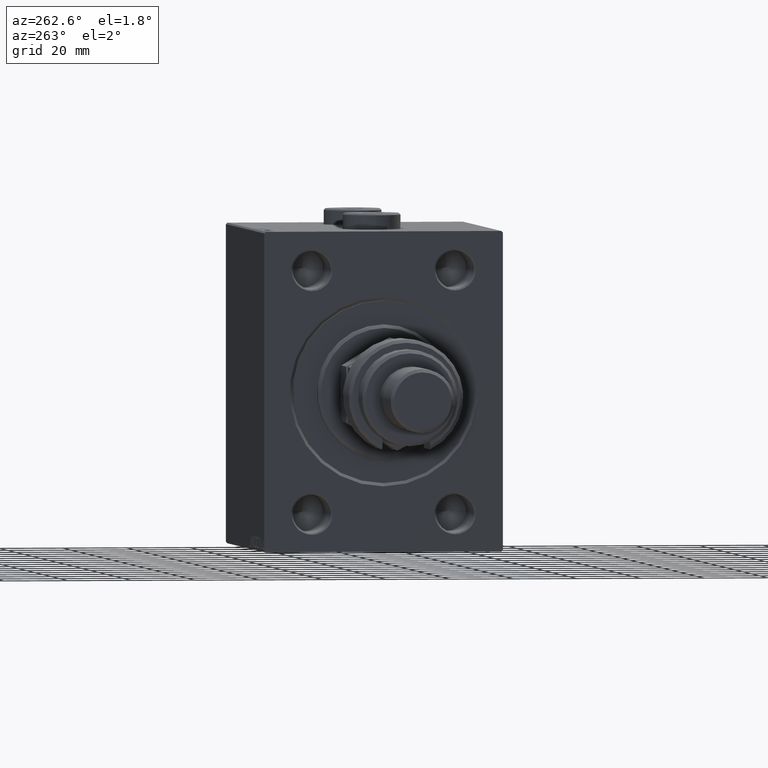
[diagram: clean part render]
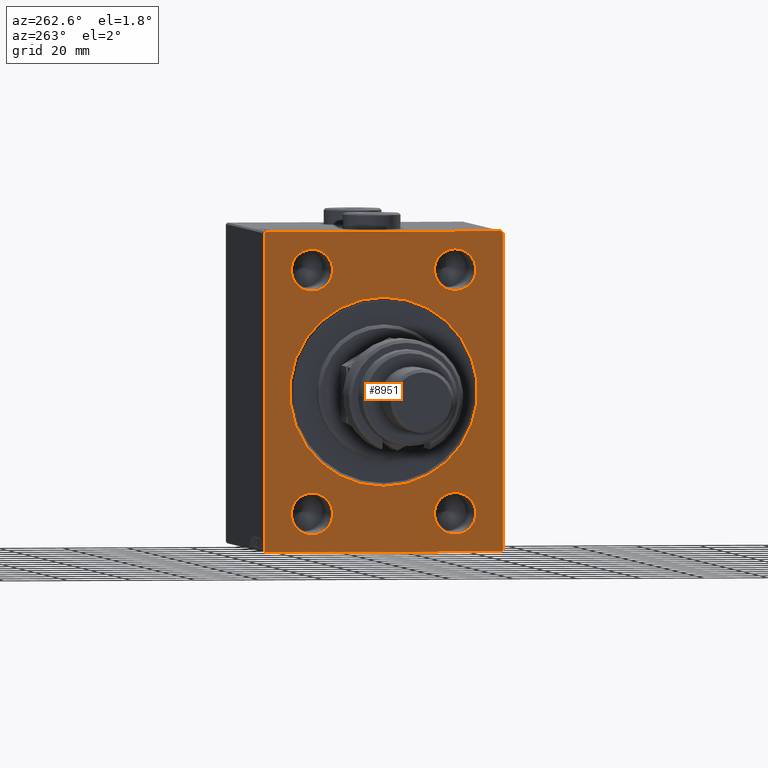
[diagram: same view with one face highlighted and labeled with its STEP entity id]
A machine part, auxiliary view. The second image highlights one B-rep face of the part: STEP entity #8951.
In plain terms, the highlighted planar face has unit normal (1, 0, 0).
Its self-contained STEP definition (entity closure, byte-faithful):
#889 = EDGE_CURVE ( 'NONE', #2323, #44089, #39453, .T. ) ;
#1381 = CARTESIAN_POINT ( 'NONE',  ( 0.000000000000000000, 22.50000000000000000, -31.50000000000000000 ) ) ;
#1384 = AXIS2_PLACEMENT_3D ( 'NONE', #27483, #35309, #5250 ) ;
#1595 = EDGE_CURVE ( 'NONE', #28750, #16881, #8248, .T. ) ;
#1763 = CIRCLE ( 'NONE', #11140, 6.500000000000005329 ) ;
#2145 = CARTESIAN_POINT ( 'NONE',  ( 0.000000000000000000, -22.50000000000000000, 44.50000000000000000 ) ) ;
#2322 = VECTOR ( 'NONE', #32963, 1000.000000000000000 ) ;
#2323 = VERTEX_POINT ( 'NONE', #1381 ) ;
#2439 = EDGE_CURVE ( 'NONE', #7145, #4033, #18463, .T. ) ;
#2837 = CARTESIAN_POINT ( 'NONE',  ( 0.000000000000000000, 37.49999999999999289, 50.00000000000000711 ) ) ;
#3036 = AXIS2_PLACEMENT_3D ( 'NONE', #8599, #4700, #14980 ) ;
#3174 = CIRCLE ( 'NONE', #11728, 6.500000000000005329 ) ;
#3199 = ORIENTED_EDGE ( 'NONE', *, *, #33177, .T. ) ;
#4003 = CARTESIAN_POINT ( 'NONE',  ( 0.000000000000000000, 0.000000000000000000, 29.50000000000002842 ) ) ;
#4033 = VERTEX_POINT ( 'NONE', #27545 ) ;
#4040 = CARTESIAN_POINT ( 'NONE',  ( 0.000000000000000000, -37.50000000000000000, 49.49999999999995026 ) ) ;
#4364 = DIRECTION ( 'NONE',  ( 1.000000000000000000, 0.000000000000000000, 0.000000000000000000 ) ) ;
#4427 = DIRECTION ( 'NONE',  ( 0.000000000000000000, -1.387778780781445676E-16, 1.000000000000000000 ) ) ;
#4700 = DIRECTION ( 'NONE',  ( 1.000000000000000000, 0.000000000000000000, 0.000000000000000000 ) ) ;
#4866 = CARTESIAN_POINT ( 'NONE',  ( 0.000000000000000000, -37.50000000000000000, 49.99999999999998579 ) ) ;
#5003 = ORIENTED_EDGE ( 'NONE', *, *, #48210, .T. ) ;
#5022 = ORIENTED_EDGE ( 'NONE', *, *, #28708, .T. ) ;
#5112 = DIRECTION ( 'NONE',  ( 0.000000000000000000, 0.000000000000000000, -1.000000000000000000 ) ) ;
#5165 = ORIENTED_EDGE ( 'NONE', *, *, #15116, .F. ) ;
#5250 = DIRECTION ( 'NONE',  ( 0.000000000000000000, 0.000000000000000000, -1.000000000000000000 ) ) ;
#5302 = VECTOR ( 'NONE', #37951, 1000.000000000000000 ) ;
#5338 = CARTESIAN_POINT ( 'NONE',  ( 0.000000000000000000, 22.50000000000000000, 37.99999999999999289 ) ) ;
#5552 = VERTEX_POINT ( 'NONE', #25397 ) ;
#5659 = DIRECTION ( 'NONE',  ( 1.000000000000000000, 0.000000000000000000, 0.000000000000000000 ) ) ;
#6553 = CARTESIAN_POINT ( 'NONE',  ( 0.000000000000000000, -22.50000000000000000, -44.50000000000001421 ) ) ;
#7040 = VECTOR ( 'NONE', #5112, 1000.000000000000000 ) ;
#7145 = VERTEX_POINT ( 'NONE', #19507 ) ;
#7421 = LINE ( 'NONE', #18909, #5302 ) ;
#7593 = CIRCLE ( 'NONE', #41960, 6.500000000000005329 ) ;
#8054 = EDGE_LOOP ( 'NONE', ( #10766, #8532 ) ) ;
#8248 = CIRCLE ( 'NONE', #21559, 29.50000000000002842 ) ;
#8330 = ORIENTED_EDGE ( 'NONE', *, *, #2439, .F. ) ;
#8489 = CIRCLE ( 'NONE', #48312, 6.500000000000005329 ) ;
#8532 = ORIENTED_EDGE ( 'NONE', *, *, #9671, .T. ) ;
#8599 = CARTESIAN_POINT ( 'NONE',  ( 0.000000000000000000, -22.50000000000000000, -38.00000000000000711 ) ) ;
#8951 = ADVANCED_FACE ( 'NONE', ( #32544, #24480, #10048, #20805, #47217, #35974 ), #16900, .F. ) ;
#9011 = LINE ( 'NONE', #31976, #2322 ) ;
#9056 = VECTOR ( 'NONE', #24834, 1000.000000000000000 ) ;
#9290 = ORIENTED_EDGE ( 'NONE', *, *, #11363, .T. ) ;
#9671 = EDGE_CURVE ( 'NONE', #44089, #2323, #27926, .T. ) ;
#10048 = FACE_BOUND ( 'NONE', #18794, .T. ) ;
#10300 = DIRECTION ( 'NONE',  ( 1.000000000000000000, 0.000000000000000000, 0.000000000000000000 ) ) ;
#10468 = DIRECTION ( 'NONE',  ( 0.000000000000000000, 0.000000000000000000, -1.000000000000000000 ) ) ;
#10588 = ORIENTED_EDGE ( 'NONE', *, *, #13187, .T. ) ;
#10766 = ORIENTED_EDGE ( 'NONE', *, *, #889, .T. ) ;
#10865 = VECTOR ( 'NONE', #12166, 1000.000000000000000 ) ;
#10954 = CARTESIAN_POINT ( 'NONE',  ( 0.000000000000000000, -37.50000000000000000, -49.49999999999997158 ) ) ;
#11140 = AXIS2_PLACEMENT_3D ( 'NONE', #31558, #5659, #20069 ) ;
#11363 = EDGE_CURVE ( 'NONE', #22186, #33260, #25672, .T. ) ;
#11728 = AXIS2_PLACEMENT_3D ( 'NONE', #18047, #21229, #10468 ) ;
#12166 = DIRECTION ( 'NONE',  ( 0.000000000000000000, -0.7071067811865622277, -0.7071067811865328068 ) ) ;
#12397 = DIRECTION ( 'NONE',  ( -0.000000000000000000, 0.7071067811865426878, -0.7071067811865524577 ) ) ;
#12549 = DIRECTION ( 'NONE',  ( 0.000000000000000000, 0.000000000000000000, -1.000000000000000000 ) ) ;
#13187 = EDGE_CURVE ( 'NONE', #34849, #39929, #8489, .T. ) ;
#13751 = CARTESIAN_POINT ( 'NONE',  ( 0.000000000000000000, 22.50000000000000000, -44.50000000000001421 ) ) ;
#14162 = CARTESIAN_POINT ( 'NONE',  ( 0.000000000000000000, -22.50000000000000000, -38.00000000000000711 ) ) ;
#14980 = DIRECTION ( 'NONE',  ( 0.000000000000000000, 0.000000000000000000, -1.000000000000000000 ) ) ;
#15035 = EDGE_CURVE ( 'NONE', #38932, #41784, #38345, .T. ) ;
#15116 = EDGE_CURVE ( 'NONE', #41007, #40699, #9011, .T. ) ;
#16346 = DIRECTION ( 'NONE',  ( 0.000000000000000000, 0.000000000000000000, -1.000000000000000000 ) ) ;
#16359 = EDGE_LOOP ( 'NONE', ( #36305, #9290 ) ) ;
#16881 = VERTEX_POINT ( 'NONE', #48118 ) ;
#16900 = PLANE ( 'NONE',  #46638 ) ;
#16964 = CARTESIAN_POINT ( 'NONE',  ( 0.000000000000000000, 22.50000000000000000, 31.49999999999998579 ) ) ;
#17084 = ORIENTED_EDGE ( 'NONE', *, *, #22356, .T. ) ;
#17133 = ORIENTED_EDGE ( 'NONE', *, *, #48195, .T. ) ;
#17134 = CARTESIAN_POINT ( 'NONE',  ( 0.000000000000000000, -22.50000000000000000, 37.99999999999999289 ) ) ;
#17290 = CIRCLE ( 'NONE', #31307, 29.50000000000002842 ) ;
#18047 = CARTESIAN_POINT ( 'NONE',  ( 0.000000000000000000, -22.50000000000000000, 37.99999999999999289 ) ) ;
#18463 = LINE ( 'NONE', #2837, #9056 ) ;
#18794 = EDGE_LOOP ( 'NONE', ( #46651, #5003 ) ) ;
#18909 = CARTESIAN_POINT ( 'NONE',  ( 0.000000000000000000, -37.50000000000000000, 49.49999999999995026 ) ) ;
#19507 = CARTESIAN_POINT ( 'NONE',  ( 0.000000000000000000, 37.00000000000002132, 50.00000000000000711 ) ) ;
#20069 = DIRECTION ( 'NONE',  ( 0.000000000000000000, 0.000000000000000000, -1.000000000000000000 ) ) ;
#20619 = DIRECTION ( 'NONE',  ( 1.000000000000000000, 0.000000000000000000, 0.000000000000000000 ) ) ;
#20720 = CARTESIAN_POINT ( 'NONE',  ( 0.000000000000000000, 22.50000000000000000, 44.50000000000000000 ) ) ;
#20805 = FACE_BOUND ( 'NONE', #36871, .T. ) ;
#21229 = DIRECTION ( 'NONE',  ( 1.000000000000000000, 0.000000000000000000, 0.000000000000000000 ) ) ;
#21503 = ORIENTED_EDGE ( 'NONE', *, *, #1595, .T. ) ;
#21559 = AXIS2_PLACEMENT_3D ( 'NONE', #24408, #24158, #16346 ) ;
#22186 = VERTEX_POINT ( 'NONE', #6553 ) ;
#22256 = CARTESIAN_POINT ( 'NONE',  ( 0.000000000000000000, 37.49999999999999289, 49.50000000000002842 ) ) ;
#22356 = EDGE_CURVE ( 'NONE', #41007, #41784, #24033, .T. ) ;
#23414 = DIRECTION ( 'NONE',  ( 0.000000000000000000, 0.000000000000000000, -1.000000000000000000 ) ) ;
#23552 = DIRECTION ( 'NONE',  ( -0.000000000000000000, -0.7071067811865378028, 0.7071067811865573427 ) ) ;
#24033 = LINE ( 'NONE', #34558, #35260 ) ;
#24158 = DIRECTION ( 'NONE',  ( 1.000000000000000000, 0.000000000000000000, 0.000000000000000000 ) ) ;
#24408 = CARTESIAN_POINT ( 'NONE',  ( 0.000000000000000000, 0.000000000000000000, 0.000000000000000000 ) ) ;
#24480 = FACE_BOUND ( 'NONE', #16359, .T. ) ;
#24721 = CARTESIAN_POINT ( 'NONE',  ( 0.000000000000000000, 0.000000000000000000, 0.000000000000000000 ) ) ;
#24834 = DIRECTION ( 'NONE',  ( 0.000000000000000000, -1.000000000000000000, -2.775557561562891844E-16 ) ) ;
#25397 = CARTESIAN_POINT ( 'NONE',  ( 0.000000000000000000, -22.50000000000000000, 31.49999999999998579 ) ) ;
#25672 = CIRCLE ( 'NONE', #3036, 6.500000000000005329 ) ;
#27381 = EDGE_LOOP ( 'NONE', ( #21503, #38865 ) ) ;
#27483 = CARTESIAN_POINT ( 'NONE',  ( 0.000000000000000000, 22.50000000000000000, -38.00000000000000711 ) ) ;
#27545 = CARTESIAN_POINT ( 'NONE',  ( 0.000000000000000000, -36.99999999999996447, 49.99999999999998579 ) ) ;
#27926 = CIRCLE ( 'NONE', #1384, 6.500000000000005329 ) ;
#28041 = CARTESIAN_POINT ( 'NONE',  ( 0.000000000000000000, 37.50000000000000711, -49.50000000000001421 ) ) ;
#28184 = CARTESIAN_POINT ( 'NONE',  ( 0.000000000000000000, 0.000000000000000000, 0.000000000000000000 ) ) ;
#28708 = EDGE_CURVE ( 'NONE', #38932, #4033, #7421, .T. ) ;
#28750 = VERTEX_POINT ( 'NONE', #4003 ) ;
#29069 = DIRECTION ( 'NONE',  ( 0.000000000000000000, 0.000000000000000000, -1.000000000000000000 ) ) ;
#30197 = CARTESIAN_POINT ( 'NONE',  ( 0.000000000000000000, 37.50000000000000711, -49.50000000000001421 ) ) ;
#30453 = EDGE_CURVE ( 'NONE', #33260, #22186, #7593, .T. ) ;
#30619 = CARTESIAN_POINT ( 'NONE',  ( 0.000000000000000000, -22.50000000000000000, -31.50000000000000000 ) ) ;
#30773 = VERTEX_POINT ( 'NONE', #30197 ) ;
#30808 = CARTESIAN_POINT ( 'NONE',  ( 0.000000000000000000, 37.50000000000000711, -50.00000000000000000 ) ) ;
#31307 = AXIS2_PLACEMENT_3D ( 'NONE', #28184, #20619, #12549 ) ;
#31558 = CARTESIAN_POINT ( 'NONE',  ( 0.000000000000000000, 22.50000000000000000, 37.99999999999999289 ) ) ;
#31976 = CARTESIAN_POINT ( 'NONE',  ( 0.000000000000000000, -37.50000000000000000, -50.00000000000000000 ) ) ;
#32040 = DIRECTION ( 'NONE',  ( 1.000000000000000000, 0.000000000000000000, 0.000000000000000000 ) ) ;
#32544 = FACE_BOUND ( 'NONE', #27381, .T. ) ;
#32659 = VECTOR ( 'NONE', #12397, 1000.000000000000000 ) ;
#32963 = DIRECTION ( 'NONE',  ( 0.000000000000000000, 1.000000000000000000, 0.000000000000000000 ) ) ;
#33177 = EDGE_CURVE ( 'NONE', #7145, #40242, #45895, .T. ) ;
#33260 = VERTEX_POINT ( 'NONE', #30619 ) ;
#33842 = DIRECTION ( 'NONE',  ( 1.000000000000000000, 0.000000000000000000, 0.000000000000000000 ) ) ;
#34558 = CARTESIAN_POINT ( 'NONE',  ( 0.000000000000000000, -37.00000000000001421, -50.00000000000000000 ) ) ;
#34849 = VERTEX_POINT ( 'NONE', #20720 ) ;
#34876 = EDGE_CURVE ( 'NONE', #30773, #40699, #39298, .T. ) ;
#35260 = VECTOR ( 'NONE', #23552, 1000.000000000000000 ) ;
#35309 = DIRECTION ( 'NONE',  ( 1.000000000000000000, 0.000000000000000000, 0.000000000000000000 ) ) ;
#35557 = AXIS2_PLACEMENT_3D ( 'NONE', #41879, #33842, #38208 ) ;
#35558 = EDGE_CURVE ( 'NONE', #30773, #40242, #37904, .T. ) ;
#35655 = ORIENTED_EDGE ( 'NONE', *, *, #35558, .F. ) ;
#35953 = VERTEX_POINT ( 'NONE', #2145 ) ;
#35974 = FACE_OUTER_BOUND ( 'NONE', #37510, .T. ) ;
#36305 = ORIENTED_EDGE ( 'NONE', *, *, #30453, .T. ) ;
#36871 = EDGE_LOOP ( 'NONE', ( #10588, #17133 ) ) ;
#36941 = CARTESIAN_POINT ( 'NONE',  ( 0.000000000000000000, 37.00000000000000000, -50.00000000000000000 ) ) ;
#37510 = EDGE_LOOP ( 'NONE', ( #41690, #5022, #8330, #3199, #35655, #38748, #5165, #17084 ) ) ;
#37904 = LINE ( 'NONE', #30808, #40540 ) ;
#37951 = DIRECTION ( 'NONE',  ( -0.000000000000000000, 0.7071067811865426878, 0.7071067811865524577 ) ) ;
#38208 = DIRECTION ( 'NONE',  ( 0.000000000000000000, 0.000000000000000000, -1.000000000000000000 ) ) ;
#38345 = LINE ( 'NONE', #4866, #7040 ) ;
#38431 = EDGE_CURVE ( 'NONE', #35953, #5552, #3174, .T. ) ;
#38748 = ORIENTED_EDGE ( 'NONE', *, *, #34876, .T. ) ;
#38795 = CARTESIAN_POINT ( 'NONE',  ( 0.000000000000000000, 37.00000000000002132, 50.00000000000000711 ) ) ;
#38865 = ORIENTED_EDGE ( 'NONE', *, *, #44877, .T. ) ;
#38932 = VERTEX_POINT ( 'NONE', #4040 ) ;
#39298 = LINE ( 'NONE', #28041, #10865 ) ;
#39453 = CIRCLE ( 'NONE', #35557, 6.500000000000005329 ) ;
#39929 = VERTEX_POINT ( 'NONE', #16964 ) ;
#40242 = VERTEX_POINT ( 'NONE', #22256 ) ;
#40540 = VECTOR ( 'NONE', #4427, 1000.000000000000000 ) ;
#40699 = VERTEX_POINT ( 'NONE', #36941 ) ;
#41007 = VERTEX_POINT ( 'NONE', #46908 ) ;
#41571 = CIRCLE ( 'NONE', #43149, 6.500000000000005329 ) ;
#41690 = ORIENTED_EDGE ( 'NONE', *, *, #15035, .F. ) ;
#41784 = VERTEX_POINT ( 'NONE', #10954 ) ;
#41879 = CARTESIAN_POINT ( 'NONE',  ( 0.000000000000000000, 22.50000000000000000, -38.00000000000000711 ) ) ;
#41960 = AXIS2_PLACEMENT_3D ( 'NONE', #14162, #46492, #29069 ) ;
#43149 = AXIS2_PLACEMENT_3D ( 'NONE', #17134, #32040, #46961 ) ;
#43552 = DIRECTION ( 'NONE',  ( 0.000000000000000000, 0.000000000000000000, -1.000000000000000000 ) ) ;
#44089 = VERTEX_POINT ( 'NONE', #13751 ) ;
#44877 = EDGE_CURVE ( 'NONE', #16881, #28750, #17290, .T. ) ;
#45895 = LINE ( 'NONE', #38795, #32659 ) ;
#46492 = DIRECTION ( 'NONE',  ( 1.000000000000000000, 0.000000000000000000, 0.000000000000000000 ) ) ;
#46638 = AXIS2_PLACEMENT_3D ( 'NONE', #24721, #10300, #43552 ) ;
#46651 = ORIENTED_EDGE ( 'NONE', *, *, #38431, .T. ) ;
#46908 = CARTESIAN_POINT ( 'NONE',  ( 0.000000000000000000, -37.00000000000001421, -50.00000000000000000 ) ) ;
#46961 = DIRECTION ( 'NONE',  ( 0.000000000000000000, 0.000000000000000000, -1.000000000000000000 ) ) ;
#47217 = FACE_BOUND ( 'NONE', #8054, .T. ) ;
#48118 = CARTESIAN_POINT ( 'NONE',  ( 0.000000000000000000, 3.612708057484695548E-15, -29.50000000000002842 ) ) ;
#48195 = EDGE_CURVE ( 'NONE', #39929, #34849, #1763, .T. ) ;
#48210 = EDGE_CURVE ( 'NONE', #5552, #35953, #41571, .T. ) ;
#48312 = AXIS2_PLACEMENT_3D ( 'NONE', #5338, #4364, #23414 ) ;